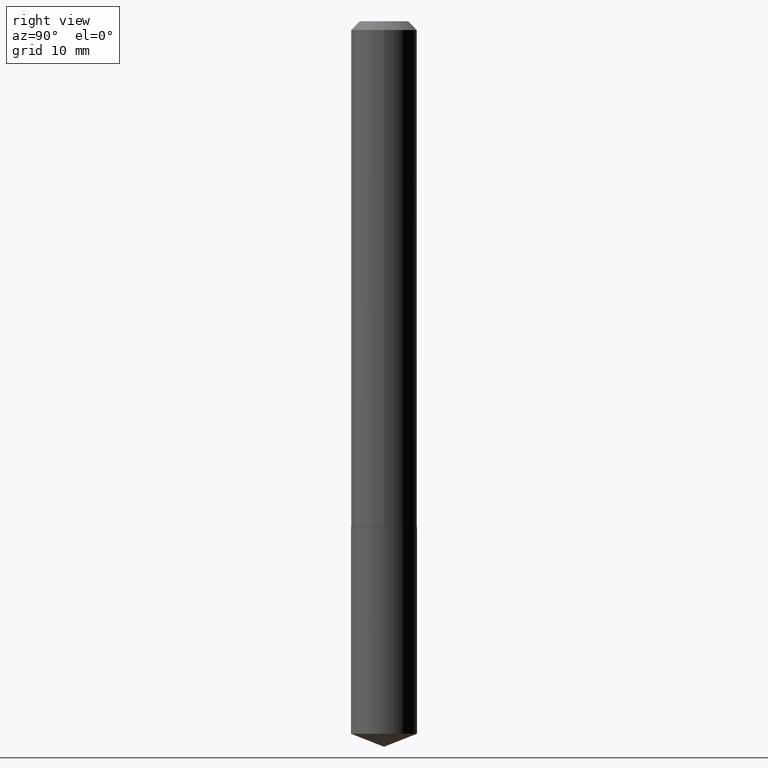
[diagram: clean part render]
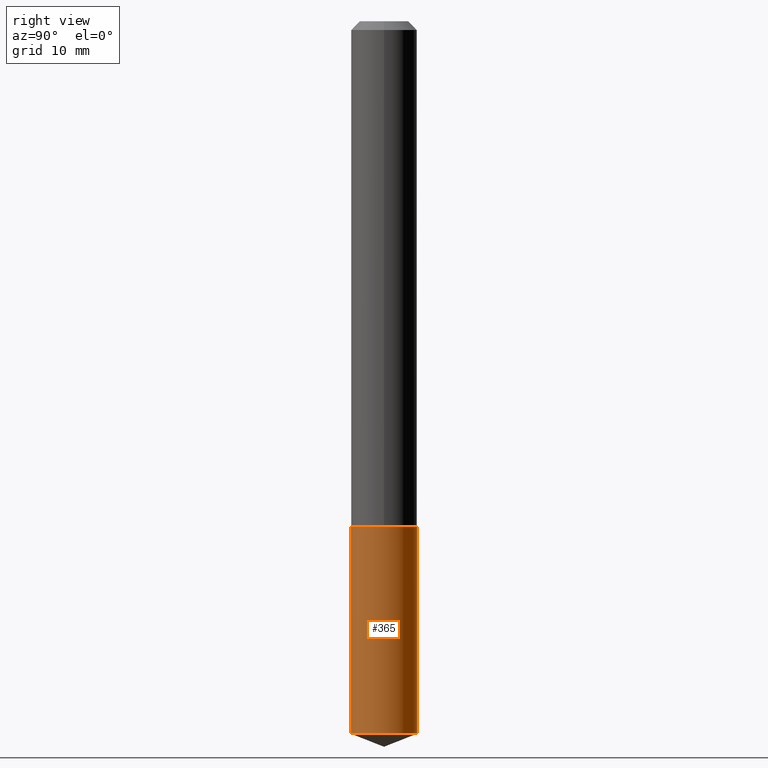
[diagram: same view with one face highlighted and labeled with its STEP entity id]
A machine part, right view. The second image highlights one B-rep face of the part: STEP entity #365.
In plain terms, the highlighted cylindrical surface (edge-blend (fillet) strip) has radius 2.9997 mm, axis along (-0, 0, 1).
Its self-contained STEP definition (entity closure, byte-faithful):
#10 = EDGE_LOOP ( 'NONE', ( #159, #301, #288, #242 ) ) ;
#14 = VERTEX_POINT ( 'NONE', #227 ) ;
#43 = CARTESIAN_POINT ( 'NONE',  ( 6.240262586935111587E-29, -8.910237091558793820E-15, -2.551879172829875309 ) ) ;
#51 = EDGE_CURVE ( 'NONE', #248, #389, #131, .T. ) ;
#57 = CARTESIAN_POINT ( 'NONE',  ( 4.428744008001282238E-29, -6.323072704644935995E-15, -1.810999999999999943 ) ) ;
#85 = DIRECTION ( 'NONE',  ( -2.445093134437186634E-29, 3.492019322168117950E-15, 1.000000000000000000 ) ) ;
#89 = CARTESIAN_POINT ( 'NONE',  ( 8.391509709327224719E-16, 0.1180999999999936823, -1.811000000000000387 ) ) ;
#90 = LINE ( 'NONE', #89, #113 ) ;
#91 = FACE_OUTER_BOUND ( 'NONE', #10, .T. ) ;
#97 = CARTESIAN_POINT ( 'NONE',  ( 4.428744008001282238E-29, -6.323072704644935995E-15, -1.810999999999999943 ) ) ;
#98 = DIRECTION ( 'NONE',  ( -2.445093134437186634E-29, 3.492019322168117950E-15, 1.000000000000000000 ) ) ;
#103 = DIRECTION ( 'NONE',  ( -2.445093134437186634E-29, 3.492019322168117950E-15, 1.000000000000000000 ) ) ;
#111 = DIRECTION ( 'NONE',  ( -2.445093134437186634E-29, 3.492019322168117950E-15, 1.000000000000000000 ) ) ;
#113 = VECTOR ( 'NONE', #390, 39.37007874015748143 ) ;
#116 = EDGE_CURVE ( 'NONE', #14, #271, #217, .T. ) ;
#120 = CARTESIAN_POINT ( 'NONE',  ( 8.391509709327405171E-16, 0.1180999999999936684, -1.811000000000000387 ) ) ;
#131 = CIRCLE ( 'NONE', #283, 0.1180999999999999966 ) ;
#145 = AXIS2_PLACEMENT_3D ( 'NONE', #97, #103, #364 ) ;
#151 = CARTESIAN_POINT ( 'NONE',  ( -8.246878922347036920E-16, -0.1181000000000063110, -1.810999999999999277 ) ) ;
#159 = ORIENTED_EDGE ( 'NONE', *, *, #51, .T. ) ;
#171 = VECTOR ( 'NONE', #85, 39.37007874015748143 ) ;
#217 = CIRCLE ( 'NONE', #342, 0.1180999999999999966 ) ;
#227 = CARTESIAN_POINT ( 'NONE',  ( -8.246878922347036920E-16, -0.1181000000000063110, -1.810999999999999277 ) ) ;
#240 = EDGE_CURVE ( 'NONE', #248, #14, #267, .T. ) ;
#242 = ORIENTED_EDGE ( 'NONE', *, *, #240, .F. ) ;
#248 = VERTEX_POINT ( 'NONE', #355 ) ;
#267 = LINE ( 'NONE', #151, #171 ) ;
#268 = EDGE_CURVE ( 'NONE', #389, #271, #90, .T. ) ;
#271 = VERTEX_POINT ( 'NONE', #120 ) ;
#277 = DIRECTION ( 'NONE',  ( -6.982962677686265922E-15, -1.000000000000000000, 4.626330217890369336E-15 ) ) ;
#283 = AXIS2_PLACEMENT_3D ( 'NONE', #43, #98, #277 ) ;
#288 = ORIENTED_EDGE ( 'NONE', *, *, #116, .F. ) ;
#301 = ORIENTED_EDGE ( 'NONE', *, *, #268, .T. ) ;
#304 = CYLINDRICAL_SURFACE ( 'NONE', #145, 0.1180999999999999966 ) ;
#309 = CARTESIAN_POINT ( 'NONE',  ( 8.391509709327405171E-16, 0.1180999999999911010, -2.551879172829876197 ) ) ;
#341 = DIRECTION ( 'NONE',  ( -6.982962677686265922E-15, -1.000000000000000000, 4.626330217890369336E-15 ) ) ;
#342 = AXIS2_PLACEMENT_3D ( 'NONE', #57, #111, #341 ) ;
#355 = CARTESIAN_POINT ( 'NONE',  ( -8.246878922346856468E-16, -0.1181000000000089062, -2.551879172829874864 ) ) ;
#364 = DIRECTION ( 'NONE',  ( -6.982962677686265922E-15, -1.000000000000000000, 4.626330217890369336E-15 ) ) ;
#365 = ADVANCED_FACE ( 'NONE', ( #91 ), #304, .T. ) ;
#389 = VERTEX_POINT ( 'NONE', #309 ) ;
#390 = DIRECTION ( 'NONE',  ( -2.445093134437186634E-29, 3.492019322168117950E-15, 1.000000000000000000 ) ) ;